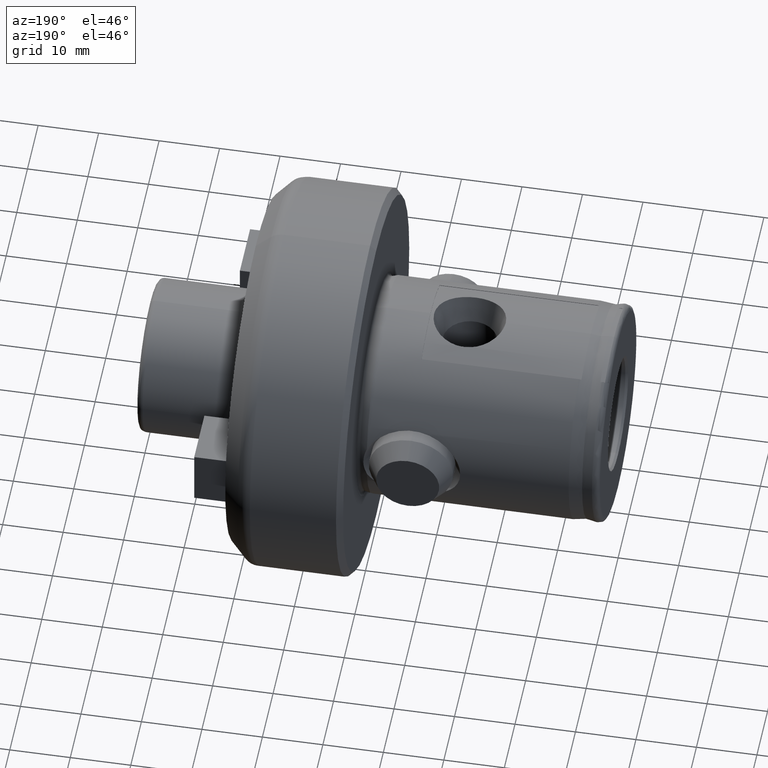
[diagram: clean part render]
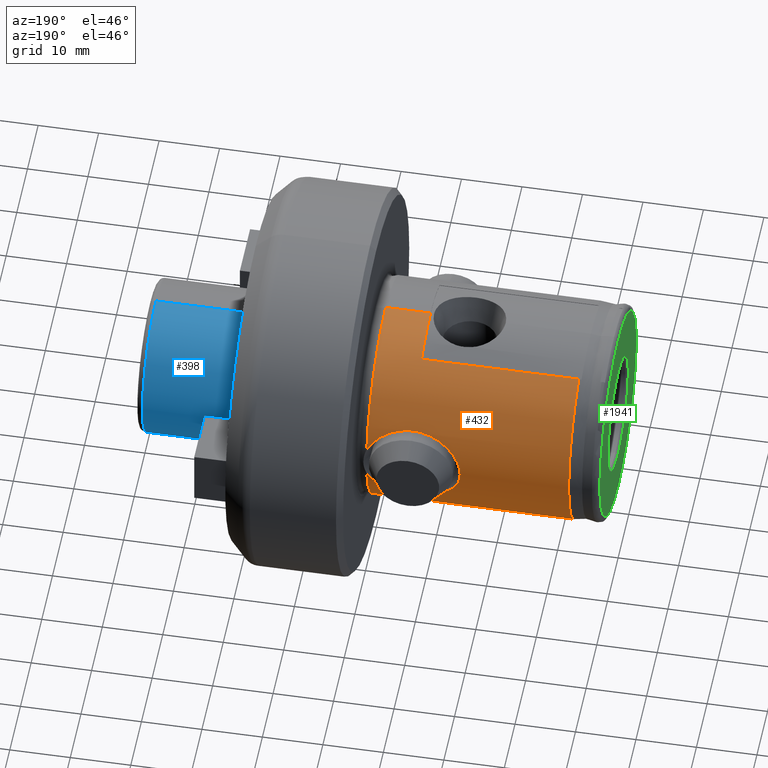
[diagram: same view with three faces highlighted in distinct colors, each labeled with its STEP entity id]
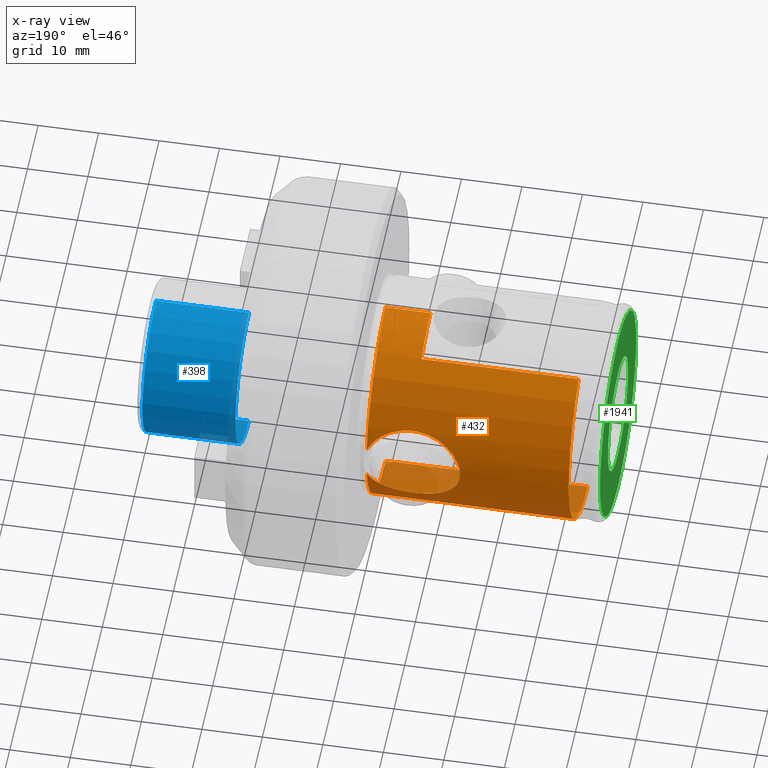
[diagram: x-ray of the same camera — body ghosted, the three highlighted faces saturated]
A machine part, auxiliary view with three faces highlighted in distinct colors.
The next image is the same camera in x-ray (body ghosted, the three faces saturated) — at least one of them is partly hidden behind the body in this view.
Their STEP definitions:

[orange] entity #432 — the highlighted cylindrical surface (partial cylindrical patch) has radius 18 mm, axis along (-1, -0, -0).
#11 = CARTESIAN_POINT ( 'NONE',  ( 38.41455850893560600, 17.77522644697580000, -2.835722969320486600 ) ) ;
#41 = CARTESIAN_POINT ( 'NONE',  ( 38.41455850893560600, 2.204364238465235000E-015, -17.99999999999999600 ) ) ;
#48 = CARTESIAN_POINT ( 'NONE',  ( 5.000000000000000000, 8.500000000000001800, 15.86663165262242400 ) ) ;
#79 = CARTESIAN_POINT ( 'NONE',  ( 31.00000000000000000, 8.500000000000001800, 15.86663165262242400 ) ) ;
#112 = CIRCLE ( 'NONE', #282, 17.99999999999999600 ) ;
#145 = AXIS2_PLACEMENT_3D ( 'NONE', #473, #474, #475 ) ;
#154 = CIRCLE ( 'NONE', #169, 17.99999999999999600 ) ;
#162 = AXIS2_PLACEMENT_3D ( 'NONE', #3401, #3402, #3403 ) ;
#163 = VECTOR ( 'NONE', #799, 1000.000000000000000 ) ;
#169 = AXIS2_PLACEMENT_3D ( 'NONE', #796, #797, #798 ) ;
#213 = VECTOR ( 'NONE', #802, 1000.000000000000000 ) ;
#282 = AXIS2_PLACEMENT_3D ( 'NONE', #653, #654, #655 ) ;
#296 = VECTOR ( 'NONE', #795, 1000.000000000000000 ) ;
#303 = CIRCLE ( 'NONE', #145, 17.99999999999999600 ) ;
#318 = CIRCLE ( 'NONE', #162, 17.99999999999999600 ) ;
#432 = ADVANCED_FACE ( 'NONE', ( #1651 ), #1688, .T. ) ;
#473 = CARTESIAN_POINT ( 'NONE',  ( 38.41455850893560600, 0.0000000000000000000, 0.0000000000000000000 ) ) ;
#474 = DIRECTION ( 'NONE',  ( -1.000000000000000000, -0.0000000000000000000, -0.0000000000000000000 ) ) ;
#475 = DIRECTION ( 'NONE',  ( 0.0000000000000000000, 0.0000000000000000000, 1.000000000000000000 ) ) ;
#653 = CARTESIAN_POINT ( 'NONE',  ( 5.000000000000000000, 0.0000000000000000000, 0.0000000000000000000 ) ) ;
#654 = DIRECTION ( 'NONE',  ( -1.000000000000000000, -0.0000000000000000000, -0.0000000000000000000 ) ) ;
#655 = DIRECTION ( 'NONE',  ( 0.0000000000000000000, 0.0000000000000000000, 1.000000000000000000 ) ) ;
#746 = LINE ( 'NONE', #754, #163 ) ;
#749 = CARTESIAN_POINT ( 'NONE',  ( 38.41455850893566300, 17.77522644697582200, 2.835722969320359200 ) ) ;
#750 = CARTESIAN_POINT ( 'NONE',  ( 38.22325769522573300, 17.71178676538877300, 3.233383360738678800 ) ) ;
#754 = CARTESIAN_POINT ( 'NONE',  ( 0.0000000000000000000, 8.500000000000001800, 15.86663165262242400 ) ) ;
#755 = CARTESIAN_POINT ( 'NONE',  ( 37.99646474748055900, 17.63860882376996000, 3.606855129293381700 ) ) ;
#756 = CARTESIAN_POINT ( 'NONE',  ( 37.47707335714002100, 17.48007102607759200, 4.310109289213925400 ) ) ;
#757 = CARTESIAN_POINT ( 'NONE',  ( 37.18306621504534300, 17.39441197991005300, 4.640149856457091100 ) ) ;
#758 = CARTESIAN_POINT ( 'NONE',  ( 36.55129623075386300, 17.22388653117948100, 5.237775441756848100 ) ) ;
#759 = CARTESIAN_POINT ( 'NONE',  ( 36.21141091913104800, 17.13830921320812500, 5.508610082120564600 ) ) ;
#760 = CARTESIAN_POINT ( 'NONE',  ( 35.48418382912814900, 16.97356370694042800, 5.997046173810050000 ) ) ;
#761 = CARTESIAN_POINT ( 'NONE',  ( 35.09994271429703600, 16.89526614417736300, 6.211949303041297600 ) ) ;
#762 = CARTESIAN_POINT ( 'NONE',  ( 34.30770989249216300, 16.75615000173566600, 6.577976082768544500 ) ) ;
#763 = CARTESIAN_POINT ( 'NONE',  ( 33.89734758831383500, 16.69476340113108700, 6.730705771259677800 ) ) ;
#764 = CARTESIAN_POINT ( 'NONE',  ( 33.25972824885350600, 16.61916049909769200, 6.914324667310960800 ) ) ;
#765 = CARTESIAN_POINT ( 'NONE',  ( 33.04300684568005400, 16.59669515726684000, 6.967933976370146900 ) ) ;
#766 = CARTESIAN_POINT ( 'NONE',  ( 32.60957766427833300, 16.55856864973132400, 7.058059103920379900 ) ) ;
#767 = CARTESIAN_POINT ( 'NONE',  ( 32.39199808531110800, 16.54278849941126600, 7.094866309426893600 ) ) ;
#768 = CARTESIAN_POINT ( 'NONE',  ( 31.73670170766270400, 16.50563471118012500, 7.181082085637367400 ) ) ;
#769 = CARTESIAN_POINT ( 'NONE',  ( 31.29644119268686700, 16.49445989731545800, 7.206445398811125900 ) ) ;
#770 = CARTESIAN_POINT ( 'NONE',  ( 30.40898110822280700, 16.50078830626886300, 7.191943260475199800 ) ) ;
#771 = CARTESIAN_POINT ( 'NONE',  ( 29.96136775513525000, 16.51864850772420800, 7.151254282170668800 ) ) ;
#772 = CARTESIAN_POINT ( 'NONE',  ( 29.09134896299174900, 16.58051310533916500, 7.006623401730665000 ) ) ;
#773 = CARTESIAN_POINT ( 'NONE',  ( 28.66477119139607800, 16.62445352552377600, 6.902827449905713000 ) ) ;
#774 = CARTESIAN_POINT ( 'NONE',  ( 27.82837615247089100, 16.73465567413485600, 6.631197576125885000 ) ) ;
#775 = CARTESIAN_POINT ( 'NONE',  ( 27.41661514601358700, 16.80145667017276200, 6.461827271297576800 ) ) ;
#776 = CARTESIAN_POINT ( 'NONE',  ( 26.63762583643103800, 16.94773195362925500, 6.067828240129371100 ) ) ;
#777 = CARTESIAN_POINT ( 'NONE',  ( 26.26695388476231600, 17.02754932183957900, 5.842477938537713900 ) ) ;
#778 = CARTESIAN_POINT ( 'NONE',  ( 25.56355220360657700, 17.19411628802264100, 5.332386843050132400 ) ) ;
#779 = CARTESIAN_POINT ( 'NONE',  ( 25.22811866797912500, 17.28170604738808400, 5.044433623290120600 ) ) ;
#780 = CARTESIAN_POINT ( 'NONE',  ( 24.62010505910684100, 17.45106249884140600, 4.423131486813455000 ) ) ;
#781 = CARTESIAN_POINT ( 'NONE',  ( 24.34541863625331400, 17.53321062079486100, 4.089163731635489200 ) ) ;
#782 = CARTESIAN_POINT ( 'NONE',  ( 23.97929142787597100, 17.64730792314462700, 3.550522037677813300 ) ) ;
#783 = CARTESIAN_POINT ( 'NONE',  ( 23.86494661084118000, 17.68381765283066200, 3.364656110074338200 ) ) ;
#784 = CARTESIAN_POINT ( 'NONE',  ( 23.65265180328632500, 17.75280752788188500, 2.979285551202880600 ) ) ;
#785 = CARTESIAN_POINT ( 'NONE',  ( 23.55458967925925500, 17.78533201208744800, 2.779154847720373600 ) ) ;
#786 = CARTESIAN_POINT ( 'NONE',  ( 23.29353052584658800, 17.87307550028493000, 2.172583244038405400 ) ) ;
#787 = CARTESIAN_POINT ( 'NONE',  ( 23.16053221535247900, 17.91940058224394500, 1.755418095963163300 ) ) ;
#788 = CARTESIAN_POINT ( 'NONE',  ( 23.02472694820993100, 17.96706735049163200, 1.109546440009171500 ) ) ;
#789 = CARTESIAN_POINT ( 'NONE',  ( 22.99013818440915100, 17.97931556761554700, 0.8908833420161187400 ) ) ;
#790 = CARTESIAN_POINT ( 'NONE',  ( 22.94356862908022500, 17.99583828762102300, 0.4463919071600969100 ) ) ;
#791 = CARTESIAN_POINT ( 'NONE',  ( 22.93190200199919800, 18.00000000000000400, 0.2219730551926356000 ) ) ;
#792 = CARTESIAN_POINT ( 'NONE',  ( 22.93190200199920200, 17.99999999999999600, -3.871334892372115400E-025 ) ) ;
#793 = LINE ( 'NONE', #794, #296 ) ;
#794 = CARTESIAN_POINT ( 'NONE',  ( 0.0000000000000000000, 0.0000000000000000000, 17.99999999999999600 ) ) ;
#795 = DIRECTION ( 'NONE',  ( -1.000000000000000000, -0.0000000000000000000, -0.0000000000000000000 ) ) ;
#796 = CARTESIAN_POINT ( 'NONE',  ( 31.00000000000000000, 0.0000000000000000000, 0.0000000000000000000 ) ) ;
#797 = DIRECTION ( 'NONE',  ( 1.000000000000000000, 0.0000000000000000000, 0.0000000000000000000 ) ) ;
#798 = DIRECTION ( 'NONE',  ( 0.0000000000000000000, 0.0000000000000000000, -1.000000000000000000 ) ) ;
#799 = DIRECTION ( 'NONE',  ( -1.000000000000000000, -0.0000000000000000000, -0.0000000000000000000 ) ) ;
#800 = LINE ( 'NONE', #801, #213 ) ;
#801 = CARTESIAN_POINT ( 'NONE',  ( 0.0000000000000000000, 2.204364238465235000E-015, -17.99999999999999600 ) ) ;
#802 = DIRECTION ( 'NONE',  ( -1.000000000000000000, -0.0000000000000000000, -0.0000000000000000000 ) ) ;
#1085 = AXIS2_PLACEMENT_3D ( 'NONE', #1655, #1709, #1685 ) ;
#1491 = VERTEX_POINT ( 'NONE', #1666 ) ;
#1515 = VERTEX_POINT ( 'NONE', #79 ) ;
#1536 = VERTEX_POINT ( 'NONE', #11 ) ;
#1566 = VERTEX_POINT ( 'NONE', #48 ) ;
#1603 = VERTEX_POINT ( 'NONE', #41 ) ;
#1604 = VERTEX_POINT ( 'NONE', #1904 ) ;
#1606 = VERTEX_POINT ( 'NONE', #1897 ) ;
#1613 = VERTEX_POINT ( 'NONE', #1903 ) ;
#1615 = VERTEX_POINT ( 'NONE', #1899 ) ;
#1651 = FACE_OUTER_BOUND ( 'NONE', #1885, .T. ) ;
#1655 = CARTESIAN_POINT ( 'NONE',  ( 0.0000000000000000000, 0.0000000000000000000, 0.0000000000000000000 ) ) ;
#1666 = CARTESIAN_POINT ( 'NONE',  ( 31.00000000000000000, 0.0000000000000000000, 17.99999999999999600 ) ) ;
#1685 = DIRECTION ( 'NONE',  ( 0.0000000000000000000, 0.0000000000000000000, 1.000000000000000000 ) ) ;
#1688 = CYLINDRICAL_SURFACE ( 'NONE', #1085, 17.99999999999999600 ) ;
#1709 = DIRECTION ( 'NONE',  ( -1.000000000000000000, -0.0000000000000000000, -0.0000000000000000000 ) ) ;
#1739 = ORIENTED_EDGE ( 'NONE', *, *, #2002, .T. ) ;
#1753 = ORIENTED_EDGE ( 'NONE', *, *, #2067, .T. ) ;
#1754 = ORIENTED_EDGE ( 'NONE', *, *, #2049, .F. ) ;
#1757 = ORIENTED_EDGE ( 'NONE', *, *, #2066, .F. ) ;
#1759 = ORIENTED_EDGE ( 'NONE', *, *, #1967, .T. ) ;
#1797 = ORIENTED_EDGE ( 'NONE', *, *, #2010, .T. ) ;
#1828 = ORIENTED_EDGE ( 'NONE', *, *, #2064, .F. ) ;
#1835 = ORIENTED_EDGE ( 'NONE', *, *, #2065, .T. ) ;
#1859 = ORIENTED_EDGE ( 'NONE', *, *, #2063, .T. ) ;
#1885 = EDGE_LOOP ( 'NONE', ( #1739, #1753, #1754, #1757, #1835, #1828, #1797, #1859, #1759 ) ) ;
#1897 = CARTESIAN_POINT ( 'NONE',  ( 38.41455850893566300, 17.77522644697582200, 2.835722969320359200 ) ) ;
#1899 = CARTESIAN_POINT ( 'NONE',  ( 38.41455850893560600, 0.0000000000000000000, 17.99999999999999600 ) ) ;
#1903 = CARTESIAN_POINT ( 'NONE',  ( 5.000000000000000000, 2.204364238465235000E-015, -17.99999999999999600 ) ) ;
#1904 = CARTESIAN_POINT ( 'NONE',  ( 22.93190200199920200, 17.99999999999999600, -3.871334892372115400E-025 ) ) ;
#1967 = EDGE_CURVE ( 'NONE', #1604, #1536, #2496, .T. ) ;
#2002 = EDGE_CURVE ( 'NONE', #1536, #1603, #318, .T. ) ;
#2010 = EDGE_CURVE ( 'NONE', #1615, #1606, #303, .T. ) ;
#2049 = EDGE_CURVE ( 'NONE', #1566, #1613, #112, .T. ) ;
#2063 = EDGE_CURVE ( 'NONE', #1606, #1604, #2506, .T. ) ;
#2064 = EDGE_CURVE ( 'NONE', #1615, #1491, #793, .T. ) ;
#2065 = EDGE_CURVE ( 'NONE', #1515, #1491, #154, .T. ) ;
#2066 = EDGE_CURVE ( 'NONE', #1515, #1566, #746, .T. ) ;
#2067 = EDGE_CURVE ( 'NONE', #1603, #1613, #800, .T. ) ;
#2496 = B_SPLINE_CURVE_WITH_KNOTS ( 'NONE', 3,
 ( #3056, #3064, #3074, #3075, #3076, #3077, #3078, #3079, #3080, #3081, #3082, #3083, #3084, #3085, #3086, #3087, #3088, #3089, #3090, #3091, #3092, #3093, #3094, #3095, #3096, #3097, #3098, #3099, #3100, #3101, #3102, #3103, #3104, #3105, #3106, #3107, #3108, #3109, #3110, #3111, #3112, #3113 ),
 .UNSPECIFIED., .F., .F.,
 ( 4, 2, 2, 2, 2, 2, 2, 2, 2, 2, 2, 2, 2, 2, 2, 2, 2, 2, 2, 2, 4 ),
 ( 0.04231837611106454400, 0.04364345451560892200, 0.04430599371788111800, 0.04496853292015330600, 0.04563107212242549500, 0.04629361132469769100, 0.04761868972924206800, 0.04894376813378645300, 0.05026884653833083000, 0.05159392494287521500, 0.05291900334741959200, 0.05424408175196397700, 0.05556916015650834700, 0.05623169935878052200, 0.05689423856105269700, 0.05821931696559705400, 0.05888185616786923600, 0.05954439537014141700, 0.06086947377468578100, 0.06219455217923013100, 0.06351963058377449500 ),
 .UNSPECIFIED. ) ;
#2506 = B_SPLINE_CURVE_WITH_KNOTS ( 'NONE', 3,
 ( #749, #750, #755, #756, #757, #758, #759, #760, #761, #762, #763, #764, #765, #766, #767, #768, #769, #770, #771, #772, #773, #774, #775, #776, #777, #778, #779, #780, #781, #782, #783, #784, #785, #786, #787, #788, #789, #790, #791, #792 ),
 .UNSPECIFIED., .F., .F.,
 ( 4, 2, 2, 2, 2, 2, 2, 2, 2, 2, 2, 2, 2, 2, 2, 2, 2, 2, 2, 4 ),
 ( 0.02112970282967841000, 0.02245399490976503900, 0.02377828698985166500, 0.02510257906993829500, 0.02642687115002492100, 0.02775116323011155000, 0.02841330927015486100, 0.02907545531019818000, 0.03039974739028480200, 0.03172403947037144600, 0.03304833155045808200, 0.03437262363054471900, 0.03569691571063135500, 0.03702120779071799200, 0.03834549987080462800, 0.03900764591084794600, 0.03966979195089126400, 0.04099408403097790100, 0.04165623007102121900, 0.04231837611106454400 ),
 .UNSPECIFIED. ) ;
#3056 = CARTESIAN_POINT ( 'NONE',  ( 22.93190200199920200, 17.99999999999999600, -3.871334892372115400E-025 ) ) ;
#3064 = CARTESIAN_POINT ( 'NONE',  ( 22.93190200199920200, 17.99999999999999600, -0.4442097121161614500 ) ) ;
#3074 = CARTESIAN_POINT ( 'NONE',  ( 22.97769097315835300, 17.98358038333631000, -0.8840669560141531900 ) ) ;
#3075 = CARTESIAN_POINT ( 'NONE',  ( 23.11450770583963500, 17.93555306454751300, -1.537407140434432900 ) ) ;
#3076 = CARTESIAN_POINT ( 'NONE',  ( 23.17186351799894300, 17.91553109237513700, -1.754680315417126000 ) ) ;
#3077 = CARTESIAN_POINT ( 'NONE',  ( 23.30652457802580800, 17.86911317836022700, -2.177142978797156600 ) ) ;
#3078 = CARTESIAN_POINT ( 'NONE',  ( 23.38401876159309400, 17.84265000916357000, -2.383581161034346700 ) ) ;
#3079 = CARTESIAN_POINT ( 'NONE',  ( 23.55845802897322700, 17.78404422032052800, -2.787362493545950200 ) ) ;
#3080 = CARTESIAN_POINT ( 'NONE',  ( 23.65540555508770700, 17.75190002092530900, -2.984704378626421100 ) ) ;
#3081 = CARTESIAN_POINT ( 'NONE',  ( 23.86842660269959300, 17.68269974206002400, -3.370540670704045700 ) ) ;
#3082 = CARTESIAN_POINT ( 'NONE',  ( 23.98500906537171300, 17.64549065747029700, -3.559644568445285500 ) ) ;
#3083 = CARTESIAN_POINT ( 'NONE',  ( 24.35650833749221200, 17.52982895310218600, -4.103990358311628000 ) ) ;
#3084 = CARTESIAN_POINT ( 'NONE',  ( 24.63436073430892000, 17.44689145738176700, -4.439577198171325500 ) ) ;
#3085 = CARTESIAN_POINT ( 'NONE',  ( 25.24655750495667000, 17.27678132775169900, -5.061293725643069200 ) ) ;
#3086 = CARTESIAN_POINT ( 'NONE',  ( 25.58281051922636400, 17.18925380789051600, -5.348000421195601800 ) ) ;
#3087 = CARTESIAN_POINT ( 'NONE',  ( 26.28859359313111800, 17.02274508933091100, -5.856424216264334100 ) ) ;
#3088 = CARTESIAN_POINT ( 'NONE',  ( 26.66053469898522000, 16.94301535979870400, -6.080955321691591000 ) ) ;
#3089 = CARTESIAN_POINT ( 'NONE',  ( 27.44232305104138400, 16.79707083821647400, -6.473190740486643300 ) ) ;
#3090 = CARTESIAN_POINT ( 'NONE',  ( 27.85411953193403200, 16.73078757115319700, -6.640913830973034700 ) ) ;
#3091 = CARTESIAN_POINT ( 'NONE',  ( 28.68931508895390400, 16.62172541123075600, -6.909358408355206600 ) ) ;
#3092 = CARTESIAN_POINT ( 'NONE',  ( 29.11575502398847700, 16.57827458412400300, -7.011903959323704200 ) ) ;
#3093 = CARTESIAN_POINT ( 'NONE',  ( 29.98658153610718100, 16.51738820525705600, -7.154150697198575800 ) ) ;
#3094 = CARTESIAN_POINT ( 'NONE',  ( 30.43455029711806900, 16.50009753239773500, -7.193526586947545100 ) ) ;
#3095 = CARTESIAN_POINT ( 'NONE',  ( 31.31967915464217700, 16.49483146206961900, -7.205593547632096500 ) ) ;
#3096 = CARTESIAN_POINT ( 'NONE',  ( 31.75936099716420500, 16.50645626538545600, -7.179204234457065700 ) ) ;
#3097 = CARTESIAN_POINT ( 'NONE',  ( 32.41461366777973300, 16.54432081348345900, -7.091295141990649100 ) ) ;
#3098 = CARTESIAN_POINT ( 'NONE',  ( 32.63231668030570600, 16.56034365531663300, -7.053898310445708500 ) ) ;
#3099 = CARTESIAN_POINT ( 'NONE',  ( 33.06626629754461500, 16.59899160917128200, -6.962466582681457800 ) ) ;
#3100 = CARTESIAN_POINT ( 'NONE',  ( 33.28246580513796700, 16.62165037414337100, -6.908340353321326800 ) ) ;
#3101 = CARTESIAN_POINT ( 'NONE',  ( 33.91735542046166100, 16.69758163014083200, -6.723725016323570900 ) ) ;
#3102 = CARTESIAN_POINT ( 'NONE',  ( 34.32638708030927400, 16.75911846020310100, -6.570429767877740800 ) ) ;
#3103 = CARTESIAN_POINT ( 'NONE',  ( 34.91913907800200400, 16.86368335530488200, -6.294905354049919100 ) ) ;
#3104 = CARTESIAN_POINT ( 'NONE',  ( 35.11323967572234700, 16.90058372384155700, -6.195425498821695200 ) ) ;
#3105 = CARTESIAN_POINT ( 'NONE',  ( 35.49434043996612300, 16.97779143842763700, -5.980604082472054600 ) ) ;
#3106 = CARTESIAN_POINT ( 'NONE',  ( 35.68202834501067100, 17.01826837074837300, -5.864738389333548500 ) ) ;
#3107 = CARTESIAN_POINT ( 'NONE',  ( 36.22501593775069000, 17.14163620460444900, -5.498251275227709700 ) ) ;
#3108 = CARTESIAN_POINT ( 'NONE',  ( 36.56274029073382800, 17.22686039147077300, -5.227898754577638300 ) ) ;
#3109 = CARTESIAN_POINT ( 'NONE',  ( 37.18956424906620800, 17.39628433779717300, -4.633026610527022800 ) ) ;
#3110 = CARTESIAN_POINT ( 'NONE',  ( 37.48006713832751300, 17.48094520961730000, -4.306718970528773800 ) ) ;
#3111 = CARTESIAN_POINT ( 'NONE',  ( 38.00119512299937700, 17.64009293534651200, -3.599777068804783200 ) ) ;
#3112 = CARTESIAN_POINT ( 'NONE',  ( 38.22606379371787700, 17.71271733118925700, -3.227550274077406500 ) ) ;
#3113 = CARTESIAN_POINT ( 'NONE',  ( 38.41455850893560600, 17.77522644697580000, -2.835722969320486600 ) ) ;
#3401 = CARTESIAN_POINT ( 'NONE',  ( 38.41455850893560600, 0.0000000000000000000, 0.0000000000000000000 ) ) ;
#3402 = DIRECTION ( 'NONE',  ( -1.000000000000000000, -0.0000000000000000000, -0.0000000000000000000 ) ) ;
#3403 = DIRECTION ( 'NONE',  ( 0.0000000000000000000, 0.0000000000000000000, 1.000000000000000000 ) ) ;

[blue] entity #398 — the highlighted cylindrical surface (partial cylindrical patch) has radius 12.6975 mm, axis along (-1, -0, -0).
#34 = CARTESIAN_POINT ( 'NONE',  ( 76.41000000000002500, 1.554995273217351900E-015, 12.69750000000000000 ) ) ;
#86 = CARTESIAN_POINT ( 'NONE',  ( 61.02223641030751400, 1.554995273217351900E-015, 12.69750000000000000 ) ) ;
#87 = CARTESIAN_POINT ( 'NONE',  ( 61.02223641030751400, 0.0000000000000000000, -12.69750000000000000 ) ) ;
#398 = ADVANCED_FACE ( 'NONE', ( #2776 ), #2779, .T. ) ;
#1016 = AXIS2_PLACEMENT_3D ( 'NONE', #2782, #2777, #2783 ) ;
#1482 = VERTEX_POINT ( 'NONE', #1660 ) ;
#1509 = VERTEX_POINT ( 'NONE', #34 ) ;
#1519 = VERTEX_POINT ( 'NONE', #86 ) ;
#1581 = VERTEX_POINT ( 'NONE', #87 ) ;
#1660 = CARTESIAN_POINT ( 'NONE',  ( 76.41000000000002500, 0.0000000000000000000, -12.69750000000000000 ) ) ;
#2540 = EDGE_CURVE ( 'NONE', #1509, #1482, #3485, .T. ) ;
#2541 = EDGE_CURVE ( 'NONE', #1509, #1519, #4022, .T. ) ;
#2543 = EDGE_CURVE ( 'NONE', #1519, #1581, #3533, .T. ) ;
#2544 = EDGE_CURVE ( 'NONE', #1482, #1581, #4028, .T. ) ;
#2776 = FACE_OUTER_BOUND ( 'NONE', #2818, .T. ) ;
#2777 = DIRECTION ( 'NONE',  ( -1.000000000000000000, -0.0000000000000000000, -0.0000000000000000000 ) ) ;
#2779 = CYLINDRICAL_SURFACE ( 'NONE', #1016, 12.69750000000000000 ) ;
#2782 = CARTESIAN_POINT ( 'NONE',  ( 77.41000000000002500, 0.0000000000000000000, 0.0000000000000000000 ) ) ;
#2783 = DIRECTION ( 'NONE',  ( 0.0000000000000000000, 0.0000000000000000000, 1.000000000000000000 ) ) ;
#2818 = EDGE_LOOP ( 'NONE', ( #3712, #3612, #3672, #3601 ) ) ;
#3472 = VECTOR ( 'NONE', #4026, 1000.000000000000000 ) ;
#3477 = AXIS2_PLACEMENT_3D ( 'NONE', #4031, #4032, #4033 ) ;
#3479 = VECTOR ( 'NONE', #4034, 1000.000000000000000 ) ;
#3481 = AXIS2_PLACEMENT_3D ( 'NONE', #4023, #4024, #4025 ) ;
#3485 = CIRCLE ( 'NONE', #3481, 12.69750000000000000 ) ;
#3533 = CIRCLE ( 'NONE', #3477, 12.69750000000000000 ) ;
#3601 = ORIENTED_EDGE ( 'NONE', *, *, #2541, .F. ) ;
#3612 = ORIENTED_EDGE ( 'NONE', *, *, #2544, .T. ) ;
#3672 = ORIENTED_EDGE ( 'NONE', *, *, #2543, .F. ) ;
#3712 = ORIENTED_EDGE ( 'NONE', *, *, #2540, .T. ) ;
#4016 = CARTESIAN_POINT ( 'NONE',  ( 77.41000000000002500, 0.0000000000000000000, 12.69750000000000000 ) ) ;
#4021 = CARTESIAN_POINT ( 'NONE',  ( 77.41000000000002500, 1.554995273217351900E-015, -12.69750000000000000 ) ) ;
#4022 = LINE ( 'NONE', #4016, #3472 ) ;
#4023 = CARTESIAN_POINT ( 'NONE',  ( 76.41000000000002500, 0.0000000000000000000, 0.0000000000000000000 ) ) ;
#4024 = DIRECTION ( 'NONE',  ( -1.000000000000000000, -0.0000000000000000000, -0.0000000000000000000 ) ) ;
#4025 = DIRECTION ( 'NONE',  ( 0.0000000000000000000, 0.0000000000000000000, -1.000000000000000000 ) ) ;
#4026 = DIRECTION ( 'NONE',  ( -1.000000000000000000, -0.0000000000000000000, -0.0000000000000000000 ) ) ;
#4028 = LINE ( 'NONE', #4021, #3479 ) ;
#4031 = CARTESIAN_POINT ( 'NONE',  ( 61.02223641030751400, 0.0000000000000000000, 0.0000000000000000000 ) ) ;
#4032 = DIRECTION ( 'NONE',  ( -1.000000000000000000, -0.0000000000000000000, -0.0000000000000000000 ) ) ;
#4033 = DIRECTION ( 'NONE',  ( 0.0000000000000000000, 0.0000000000000000000, 1.000000000000000000 ) ) ;
#4034 = DIRECTION ( 'NONE',  ( -1.000000000000000000, -0.0000000000000000000, -0.0000000000000000000 ) ) ;

[green] entity #1941 — the highlighted planar face has unit normal (1, 0, 0).
#8 = CARTESIAN_POINT ( 'NONE',  ( 1.506265815201522500E-015, 1.163414459189985500E-015, -9.500000000000000000 ) ) ;
#19 = CARTESIAN_POINT ( 'NONE',  ( 1.301042606982605300E-015, 2.142201641675594700E-015, -16.99999999999999300 ) ) ;
#52 = CARTESIAN_POINT ( 'NONE',  ( 1.301042606982605300E-015, 0.0000000000000000000, 16.99999999999999300 ) ) ;
#159 = AXIS2_PLACEMENT_3D ( 'NONE', #751, #752, #753 ) ;
#205 = CIRCLE ( 'NONE', #277, 16.99999999999999300 ) ;
#277 = AXIS2_PLACEMENT_3D ( 'NONE', #3825, #3826, #3827 ) ;
#309 = CIRCLE ( 'NONE', #348, 16.99999999999999300 ) ;
#319 = AXIS2_PLACEMENT_3D ( 'NONE', #562, #563, #564 ) ;
#341 = CIRCLE ( 'NONE', #159, 9.500000000000000000 ) ;
#343 = CIRCLE ( 'NONE', #319, 9.500000000000000000 ) ;
#348 = AXIS2_PLACEMENT_3D ( 'NONE', #510, #511, #512 ) ;
#510 = CARTESIAN_POINT ( 'NONE',  ( 1.301042606982605300E-015, 0.0000000000000000000, 0.0000000000000000000 ) ) ;
#511 = DIRECTION ( 'NONE',  ( -1.000000000000000000, -0.0000000000000000000, -0.0000000000000000000 ) ) ;
#512 = DIRECTION ( 'NONE',  ( 0.0000000000000000000, 0.0000000000000000000, 1.000000000000000000 ) ) ;
#562 = CARTESIAN_POINT ( 'NONE',  ( 1.506265815201522500E-015, 0.0000000000000000000, 0.0000000000000000000 ) ) ;
#563 = DIRECTION ( 'NONE',  ( -1.000000000000000000, -0.0000000000000000000, -0.0000000000000000000 ) ) ;
#564 = DIRECTION ( 'NONE',  ( 0.0000000000000000000, 0.0000000000000000000, 1.000000000000000000 ) ) ;
#751 = CARTESIAN_POINT ( 'NONE',  ( 1.506265815201522500E-015, 0.0000000000000000000, 0.0000000000000000000 ) ) ;
#752 = DIRECTION ( 'NONE',  ( -1.000000000000000000, -0.0000000000000000000, -0.0000000000000000000 ) ) ;
#753 = DIRECTION ( 'NONE',  ( 0.0000000000000000000, 0.0000000000000000000, 1.000000000000000000 ) ) ;
#1113 = AXIS2_PLACEMENT_3D ( 'NONE', #2947, #2953, #2954 ) ;
#1442 = ORIENTED_EDGE ( 'NONE', *, *, #2062, .F. ) ;
#1443 = ORIENTED_EDGE ( 'NONE', *, *, #2098, .T. ) ;
#1446 = ORIENTED_EDGE ( 'NONE', *, *, #2021, .T. ) ;
#1458 = ORIENTED_EDGE ( 'NONE', *, *, #2035, .F. ) ;
#1577 = VERTEX_POINT ( 'NONE', #52 ) ;
#1597 = VERTEX_POINT ( 'NONE', #19 ) ;
#1600 = VERTEX_POINT ( 'NONE', #8 ) ;
#1618 = VERTEX_POINT ( 'NONE', #1735 ) ;
#1735 = CARTESIAN_POINT ( 'NONE',  ( 1.506265815201522500E-015, 0.0000000000000000000, 9.500000000000000000 ) ) ;
#1941 = ADVANCED_FACE ( 'NONE', ( #2949, #2950 ), #2951, .F. ) ;
#2021 = EDGE_CURVE ( 'NONE', #1577, #1597, #309, .T. ) ;
#2035 = EDGE_CURVE ( 'NONE', #1600, #1618, #343, .T. ) ;
#2062 = EDGE_CURVE ( 'NONE', #1618, #1600, #341, .T. ) ;
#2098 = EDGE_CURVE ( 'NONE', #1597, #1577, #205, .T. ) ;
#2844 = EDGE_LOOP ( 'NONE', ( #1446, #1443 ) ) ;
#2852 = EDGE_LOOP ( 'NONE', ( #1442, #1458 ) ) ;
#2947 = CARTESIAN_POINT ( 'NONE',  ( 1.403654211092063800E-015, 16.99999999999999300, 0.0000000000000000000 ) ) ;
#2949 = FACE_BOUND ( 'NONE', #2852, .T. ) ;
#2950 = FACE_OUTER_BOUND ( 'NONE', #2844, .T. ) ;
#2951 = PLANE ( 'NONE',  #1113 ) ;
#2953 = DIRECTION ( 'NONE',  ( 1.000000000000000000, 0.0000000000000000000, 0.0000000000000000000 ) ) ;
#2954 = DIRECTION ( 'NONE',  ( 0.0000000000000000000, 0.0000000000000000000, -1.000000000000000000 ) ) ;
#3825 = CARTESIAN_POINT ( 'NONE',  ( 1.301042606982605300E-015, 0.0000000000000000000, 0.0000000000000000000 ) ) ;
#3826 = DIRECTION ( 'NONE',  ( -1.000000000000000000, -0.0000000000000000000, -0.0000000000000000000 ) ) ;
#3827 = DIRECTION ( 'NONE',  ( 0.0000000000000000000, 0.0000000000000000000, 1.000000000000000000 ) ) ;